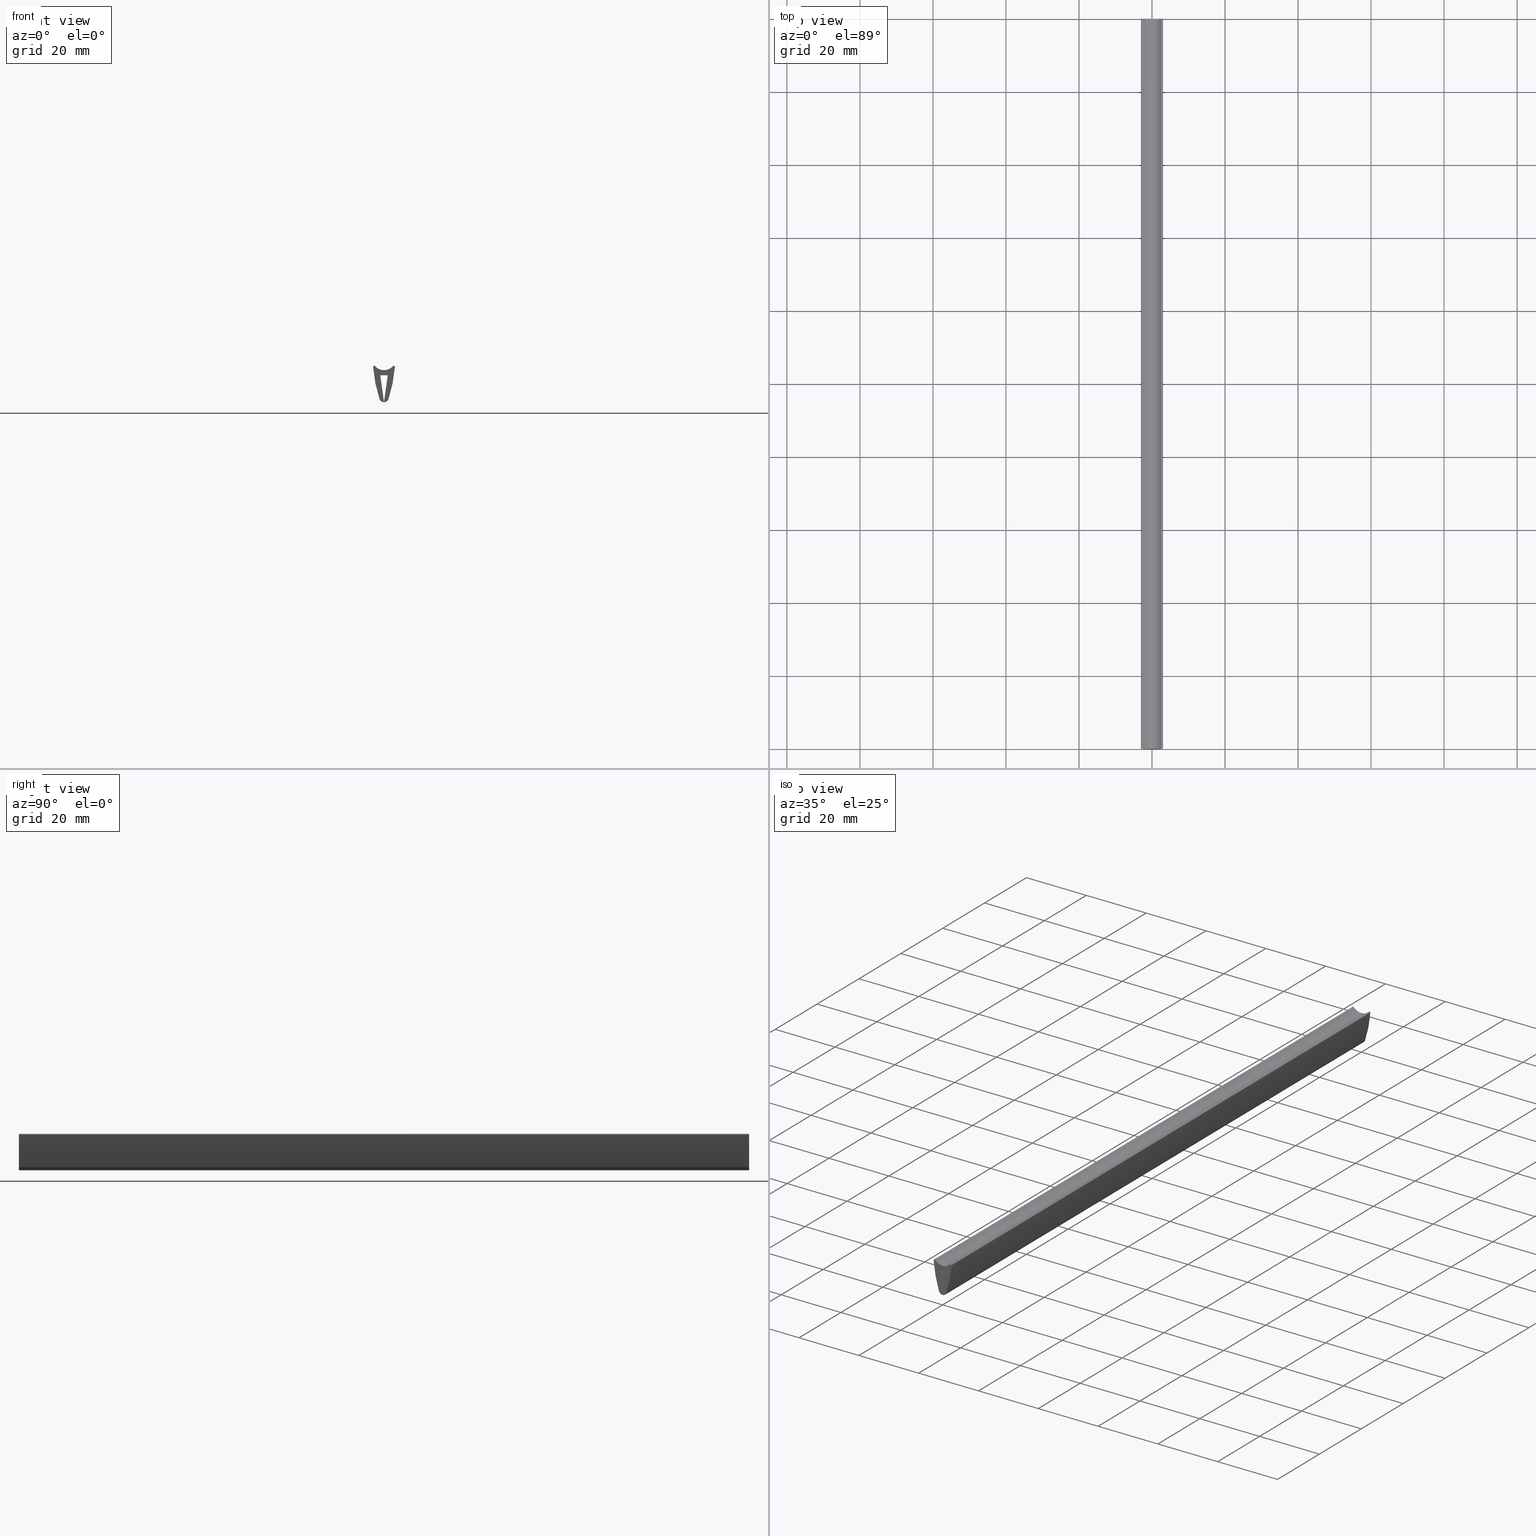
[diagram: canonical four-view strip — front | top / right | iso, engineering-drawing reading convention]
A machine part, canonical four-view strip (front | top / right | iso — engineering-drawing reading convention). The complete STEP part file that produces these views, byte-faithful:
ISO-10303-21;
HEADER;
/****************************************************************
 * Generated by software with PDE/Lib inside                    *
 * PDElib Version v5.1, created Sun 05/01/2005                  *
 * International Technegroup Inc. (www.iti-oh.com)              *
 ****************************************************************/
FILE_DESCRIPTION((''),'2;1');
FILE_NAME('','2011-05-26T16:06:13',(''),(''),'','CADfix','');
FILE_SCHEMA(('AUTOMOTIVE_DESIGN { 1 0 10303 214 1 1 1 1 }'));
ENDSEC;
DATA;
#5=CARTESIAN_POINT('',(-3.299698664219041,0.0,1.699103735473617));
#6=CARTESIAN_POINT('',(3.299698825136447,0.0,1.699103735473617));
#7=CARTESIAN_POINT('',(-3.299698664219041,0.0,-9.291263437741465));
#8=CARTESIAN_POINT('',(3.299698825136447,0.0,-9.291263437741465));
#9=B_SPLINE_SURFACE_WITH_KNOTS('',1,1,((#5,#7),(#6,#8)),.UNSPECIFIED.,.F.,.F.,.U.,(2,2),(2,2),(0.0,6.599397489355488),(0.0,10.990367173215080),.UNSPECIFIED.);
#10=CARTESIAN_POINT('',(-2.998893122436820,0.0,0.874253129103840));
#11=VERTEX_POINT('',#10);
#12=CARTESIAN_POINT('',(-1.237973647622556,0.0,-7.900937391492761));
#13=VERTEX_POINT('',#12);
#14=CARTESIAN_POINT('',(-2.998893122436820,0.0,0.874253129103840));
#15=CARTESIAN_POINT('',(-2.612403764091394,0.0,-3.612467279352695));
#16=CARTESIAN_POINT('',(-1.237973647622632,0.0,-7.900937391492790));
#24=(BOUNDED_CURVE()B_SPLINE_CURVE(2,(#14,#15,#16),.UNSPECIFIED.,.F.,.U.)CURVE()GEOMETRIC_REPRESENTATION_ITEM()QUASI_UNIFORM_CURVE()RATIONAL_B_SPLINE_CURVE((1.0,0.993722106049589,1.0))REPRESENTATION_ITEM(''));
#25=EDGE_CURVE('',#11,#13,#24,.T.);
#26=ORIENTED_EDGE('',*,*,#25,.T.);
#27=CARTESIAN_POINT('',(-0.187334978136214,0.0,-8.790605270910870));
#28=VERTEX_POINT('',#27);
#29=CARTESIAN_POINT('',(-1.237973647622559,0.0,-7.900937391492762));
#30=CARTESIAN_POINT('',(-0.990316610491872,0.0,-8.673672060989775));
#31=CARTESIAN_POINT('',(-0.187334978136215,0.0,-8.790605270910875));
#39=(BOUNDED_CURVE()B_SPLINE_CURVE(2,(#29,#30,#31),.UNSPECIFIED.,.F.,.U.)CURVE()GEOMETRIC_REPRESENTATION_ITEM()QUASI_UNIFORM_CURVE()RATIONAL_B_SPLINE_CURVE((1.0,0.848305782003037,1.0))REPRESENTATION_ITEM(''));
#40=EDGE_CURVE('',#13,#28,#39,.T.);
#41=ORIENTED_EDGE('',*,*,#40,.T.);
#42=CARTESIAN_POINT('',(-0.020026743271752,0.0,-8.606482669966738));
#43=VERTEX_POINT('',#42);
#44=CARTESIAN_POINT('',(-0.187334978136214,0.0,-8.790605270910870));
#45=CARTESIAN_POINT('',(-0.151001535892331,0.0,-8.796170380035825));
#46=CARTESIAN_POINT('',(-0.093893489949089,0.0,-8.782792772547014));
#47=CARTESIAN_POINT('',(-0.022510522975578,0.0,-8.713399255102539));
#48=CARTESIAN_POINT('',(-0.009384519282149,0.0,-8.648131069528631));
#49=CARTESIAN_POINT('',(-0.020026743271752,0.0,-8.606482669966738));
#50=B_SPLINE_CURVE_WITH_KNOTS('',3,(#44,#45,#46,#47,#48,#49),.UNSPECIFIED.,.F.,.U.,(4,1,1,4),(0.000002201997982,0.110086881460616,0.165083403019641,0.293525776803514),.UNSPECIFIED.);
#51=EDGE_CURVE('',#28,#43,#50,.T.);
#52=ORIENTED_EDGE('',*,*,#51,.T.);
#53=CARTESIAN_POINT('',(-0.999855904398664,0.0,-1.607590617739415));
#54=VERTEX_POINT('',#53);
#55=CARTESIAN_POINT('',(-0.999855904398664,0.0,-1.607590617739415));
#56=CARTESIAN_POINT('',(-0.865057145796371,0.0,-5.156752060998902));
#57=CARTESIAN_POINT('',(-0.020026743271770,0.0,-8.606482669966740));
#65=(BOUNDED_CURVE()B_SPLINE_CURVE(2,(#55,#56,#57),.UNSPECIFIED.,.F.,.U.)CURVE()GEOMETRIC_REPRESENTATION_ITEM()QUASI_UNIFORM_CURVE()RATIONAL_B_SPLINE_CURVE((1.0,0.994890563652172,1.0))REPRESENTATION_ITEM(''));
#66=EDGE_CURVE('',#54,#43,#65,.T.);
#67=ORIENTED_EDGE('',*,*,#66,.F.);
#68=CARTESIAN_POINT('',(-0.800000000001622,0.0,-1.399999999999916));
#69=VERTEX_POINT('',#68);
#70=CARTESIAN_POINT('',(-0.800000000001622,0.0,-1.399999999999916));
#71=CARTESIAN_POINT('',(-0.833508135735023,0.0,-1.399937144115973));
#72=CARTESIAN_POINT('',(-0.907288821847048,0.0,-1.418910241912869));
#73=CARTESIAN_POINT('',(-0.985036160612569,0.0,-1.499664612191858));
#74=CARTESIAN_POINT('',(-1.001185641919484,0.0,-1.574112395093613));
#75=CARTESIAN_POINT('',(-0.999855904398664,0.0,-1.607590617739415));
#76=B_SPLINE_CURVE_WITH_KNOTS('',3,(#70,#71,#72,#73,#74,#75),.UNSPECIFIED.,.F.,.U.,(4,1,1,4),(0.000000970218577,0.100599527060045,0.221288103588565,0.321886660430032),.UNSPECIFIED.);
#77=EDGE_CURVE('',#69,#54,#76,.T.);
#78=ORIENTED_EDGE('',*,*,#77,.F.);
#79=CARTESIAN_POINT('',(0.799999999998310,0.0,-1.400000000000000));
#80=VERTEX_POINT('',#79);
#81=CARTESIAN_POINT('',(-0.800000000001622,0.0,-1.399999999999916));
#82=CARTESIAN_POINT('',(0.799999999998310,0.0,-1.400000000000000));
#83=QUASI_UNIFORM_CURVE('',1,(#81,#82),.UNSPECIFIED.,.F.,.U.);
#84=EDGE_CURVE('',#69,#80,#83,.T.);
#85=ORIENTED_EDGE('',*,*,#84,.T.);
#86=CARTESIAN_POINT('',(0.999855904395450,0.0,-1.607590617739615));
#87=VERTEX_POINT('',#86);
#88=CARTESIAN_POINT('',(0.999855904395450,0.0,-1.607590617739615));
#89=CARTESIAN_POINT('',(1.001907532285566,0.0,-1.560659114451257));
#90=CARTESIAN_POINT('',(0.966149434561479,0.0,-1.452358081884174));
#91=CARTESIAN_POINT('',(0.860682385443298,0.0,-1.399185288205427));
#92=CARTESIAN_POINT('',(0.799999999998310,0.0,-1.400000000000000));
#93=B_SPLINE_CURVE_WITH_KNOTS('',3,(#88,#89,#90,#91,#92),.UNSPECIFIED.,.F.,.U.,(4,1,4),(0.000000970218598,0.140839940640073,0.321886660430248),.UNSPECIFIED.);
#94=EDGE_CURVE('',#87,#80,#93,.T.);
#95=ORIENTED_EDGE('',*,*,#94,.F.);
#96=CARTESIAN_POINT('',(0.020026743268538,0.0,-8.606482669966779));
#97=VERTEX_POINT('',#96);
#98=CARTESIAN_POINT('',(0.020026743268522,0.0,-8.606482669966770));
#99=CARTESIAN_POINT('',(0.865057145793102,0.0,-5.156752060999003));
#100=CARTESIAN_POINT('',(0.999855904395427,0.0,-1.607590617739615));
#108=(BOUNDED_CURVE()B_SPLINE_CURVE(2,(#98,#99,#100),.UNSPECIFIED.,.F.,.U.)CURVE()GEOMETRIC_REPRESENTATION_ITEM()QUASI_UNIFORM_CURVE()RATIONAL_B_SPLINE_CURVE((1.0,0.994890563652173,1.0))REPRESENTATION_ITEM(''));
#109=EDGE_CURVE('',#97,#87,#108,.T.);
#110=ORIENTED_EDGE('',*,*,#109,.F.);
#111=CARTESIAN_POINT('',(0.187334978132994,0.0,-8.790605270910961));
#112=VERTEX_POINT('',#111);
#113=CARTESIAN_POINT('',(0.020026743268538,0.0,-8.606482669966779));
#114=CARTESIAN_POINT('',(0.009324921266339,0.0,-8.648118682174051));
#115=CARTESIAN_POINT('',(0.023876558841976,0.0,-8.719980609674424));
#116=CARTESIAN_POINT('',(0.100289526268851,0.0,-8.785703170339279));
#117=CARTESIAN_POINT('',(0.157096192620880,0.0,-8.795120373757449));
#118=CARTESIAN_POINT('',(0.187334978132994,0.0,-8.790605270910961));
#119=B_SPLINE_CURVE_WITH_KNOTS('',3,(#113,#114,#115,#116,#117,#118),.UNSPECIFIED.,.F.,.U.,(4,1,1,4),(0.000002201997912,0.128444575781820,0.201795464997741,0.293525776803511),.UNSPECIFIED.);
#120=EDGE_CURVE('',#97,#112,#119,.T.);
#121=ORIENTED_EDGE('',*,*,#120,.T.);
#122=CARTESIAN_POINT('',(1.237973647619502,0.0,-7.900937391492809));
#123=VERTEX_POINT('',#122);
#124=CARTESIAN_POINT('',(0.187334978132991,0.0,-8.790605270910945));
#125=CARTESIAN_POINT('',(0.990316610488731,0.0,-8.673672060989876));
#126=CARTESIAN_POINT('',(1.237973647619503,0.0,-7.900937391492811));
#134=(BOUNDED_CURVE()B_SPLINE_CURVE(2,(#124,#125,#126),.UNSPECIFIED.,.F.,.U.)CURVE()GEOMETRIC_REPRESENTATION_ITEM()QUASI_UNIFORM_CURVE()RATIONAL_B_SPLINE_CURVE((1.0,0.848305782003044,1.0))REPRESENTATION_ITEM(''));
#135=EDGE_CURVE('',#112,#123,#134,.T.);
#136=ORIENTED_EDGE('',*,*,#135,.T.);
#137=CARTESIAN_POINT('',(2.998893122433645,0.0,0.874253129104146));
#138=VERTEX_POINT('',#137);
#139=CARTESIAN_POINT('',(1.237973647619502,0.0,-7.900937391492809));
#140=CARTESIAN_POINT('',(2.612403764088285,0.0,-3.612467279352602));
#141=CARTESIAN_POINT('',(2.998893122433656,0.0,0.874253129104148));
#149=(BOUNDED_CURVE()B_SPLINE_CURVE(2,(#139,#140,#141),.UNSPECIFIED.,.F.,.U.)CURVE()GEOMETRIC_REPRESENTATION_ITEM()QUASI_UNIFORM_CURVE()RATIONAL_B_SPLINE_CURVE((1.0,0.993722106049587,1.0))REPRESENTATION_ITEM(''));
#150=EDGE_CURVE('',#123,#138,#149,.T.);
#151=ORIENTED_EDGE('',*,*,#150,.T.);
#152=CARTESIAN_POINT('',(2.477319587627130,0.0,1.101030927835138));
#153=VERTEX_POINT('',#152);
#154=CARTESIAN_POINT('',(2.998893122433645,0.0,0.874253129104146));
#155=CARTESIAN_POINT('',(3.004521620364686,0.0,0.936419485403966));
#156=CARTESIAN_POINT('',(2.983996488947026,0.0,1.023849983374227));
#157=CARTESIAN_POINT('',(2.902812359001548,0.0,1.129707971594235));
#158=CARTESIAN_POINT('',(2.794744162492375,0.0,1.198492493214862));
#159=CARTESIAN_POINT('',(2.625239778232360,0.0,1.208566657177978));
#160=CARTESIAN_POINT('',(2.518941001537854,0.0,1.147510813045979));
#161=CARTESIAN_POINT('',(2.477319587627130,0.0,1.101030927835138));
#162=B_SPLINE_CURVE_WITH_KNOTS('',3,(#154,#155,#156,#157,#158,#159,#160,#161),.UNSPECIFIED.,.F.,.U.,(4,1,1,1,1,4),(0.000001289996857,0.187036168460242,0.257210943769040,0.397427021308781,0.561105925386999,0.748140803850377),.UNSPECIFIED.);
#163=EDGE_CURVE('',#138,#153,#162,.T.);
#164=ORIENTED_EDGE('',*,*,#163,.T.);
#165=CARTESIAN_POINT('',(-2.477319587630510,0.0,1.101030927835092));
#166=VERTEX_POINT('',#165);
#167=CARTESIAN_POINT('',(-2.477319587630510,0.0,1.101030927835092));
#168=CARTESIAN_POINT('',(-2.243605512997933,0.0,0.841884956283377));
#169=CARTESIAN_POINT('',(-1.693889548455284,0.0,0.397998059425644));
#170=CARTESIAN_POINT('',(-0.786785272524818,0.0,0.050367243145911));
#171=CARTESIAN_POINT('',(0.117202742366407,0.0,-0.032485259452997));
#172=CARTESIAN_POINT('',(0.899341585064564,0.0,0.091211854875534));
#173=CARTESIAN_POINT('',(1.737008639823064,0.0,0.437582120115600));
#174=CARTESIAN_POINT('',(2.224163110301102,0.0,0.820229923310281));
#175=CARTESIAN_POINT('',(2.477319587627130,0.0,1.101030927835138));
#176=B_SPLINE_CURVE_WITH_KNOTS('',3,(#167,#168,#169,#170,#171,#172,#173,#174,#175),.UNSPECIFIED.,.F.,.U.,(4,1,1,1,1,1,4),(0.000000388793252,1.046878569888817,2.093839955818141,2.878922345936131,3.751381498403354,4.449332256195157,5.583453707900905),.UNSPECIFIED.);
#177=EDGE_CURVE('',#166,#153,#176,.T.);
#178=ORIENTED_EDGE('',*,*,#177,.F.);
#179=CARTESIAN_POINT('',(-2.477319587630510,0.0,1.101030927835092));
#180=CARTESIAN_POINT('',(-2.524075186103634,0.0,1.153503983100710));
#181=CARTESIAN_POINT('',(-2.626771271548874,0.0,1.206794905432737));
#182=CARTESIAN_POINT('',(-2.793333063017089,0.0,1.196932997980106));
#183=CARTESIAN_POINT('',(-2.905045255941546,0.0,1.131902157287119));
#184=CARTESIAN_POINT('',(-2.986968135568884,0.0,1.015895106344414));
#185=CARTESIAN_POINT('',(-3.003724939097112,0.0,0.928609963083063));
#186=CARTESIAN_POINT('',(-2.998893122436820,0.0,0.874253129103840));
#187=B_SPLINE_CURVE_WITH_KNOTS('',3,(#179,#180,#181,#182,#183,#184,#185,#186),.UNSPECIFIED.,.F.,.U.,(4,1,1,1,1,4),(0.000001289997117,0.210420678298412,0.327353980954451,0.490931150078353,0.584490435225086,0.748140803850468),.UNSPECIFIED.);
#188=EDGE_CURVE('',#166,#11,#187,.T.);
#189=ORIENTED_EDGE('',*,*,#188,.T.);
#190=EDGE_LOOP('',(#26,#41,#52,#67,#78,#85,#95,#110,#121,#136,#151,#164,#178,#189));
#191=FACE_OUTER_BOUND('',#190,.T.);
#192=ADVANCED_FACE('',(#191),#9,.F.);
#193=CARTESIAN_POINT('',(-3.299698664219038,200.0,1.699103735473617));
#194=CARTESIAN_POINT('',(3.299698825136383,200.0,1.699103735473617));
#195=CARTESIAN_POINT('',(-3.299698664219038,200.0,-9.291263437741465));
#196=CARTESIAN_POINT('',(3.299698825136383,200.0,-9.291263437741465));
#197=B_SPLINE_SURFACE_WITH_KNOTS('',1,1,((#193,#195),(#194,#196)),.UNSPECIFIED.,.F.,.F.,.U.,(2,2),(2,2),(0.0,6.599397489355421),(0.0,10.990367173215080),.UNSPECIFIED.);
#198=CARTESIAN_POINT('',(-2.998893122436820,200.0,0.874253129103840));
#199=VERTEX_POINT('',#198);
#200=CARTESIAN_POINT('',(-1.237973647622556,200.0,-7.900937391492761));
#201=VERTEX_POINT('',#200);
#202=CARTESIAN_POINT('',(-2.998893122436889,200.0,0.874253129103833));
#203=CARTESIAN_POINT('',(-2.612403764091394,200.0,-3.612467279352695));
#204=CARTESIAN_POINT('',(-1.237973647622632,200.0,-7.900937391492790));
#212=(BOUNDED_CURVE()B_SPLINE_CURVE(2,(#202,#203,#204),.UNSPECIFIED.,.F.,.U.)CURVE()GEOMETRIC_REPRESENTATION_ITEM()QUASI_UNIFORM_CURVE()RATIONAL_B_SPLINE_CURVE((1.0,0.993722106049589,1.0))REPRESENTATION_ITEM(''));
#213=EDGE_CURVE('',#199,#201,#212,.T.);
#214=ORIENTED_EDGE('',*,*,#213,.F.);
#215=CARTESIAN_POINT('',(-2.477319587630510,200.0,1.101030927835092));
#216=VERTEX_POINT('',#215);
#217=CARTESIAN_POINT('',(-2.477319587630510,200.0,1.101030927835092));
#218=CARTESIAN_POINT('',(-2.518928375286595,200.000000000000110,1.147510487906143));
#219=CARTESIAN_POINT('',(-2.632361908604052,199.999999999999800,1.212657673200214));
#220=CARTESIAN_POINT('',(-2.803127932979718,200.000000000000200,1.196023092309493));
#221=CARTESIAN_POINT('',(-2.914092934165139,199.999999999999890,1.118894478143642));
#222=CARTESIAN_POINT('',(-2.986964586527260,200.000000000000310,1.015898076216550));
#223=CARTESIAN_POINT('',(-3.003730743328797,199.999999999999600,0.928617880250198));
#224=CARTESIAN_POINT('',(-2.998893122436820,200.0,0.874253129103840));
#225=B_SPLINE_CURVE_WITH_KNOTS('',3,(#217,#218,#219,#220,#221,#222,#223,#224),.UNSPECIFIED.,.F.,.U.,(4,1,1,1,1,4),(0.000001289997121,0.187036168460469,0.374071046923803,0.490931150078365,0.584490435225099,0.748140803850483),.UNSPECIFIED.);
#226=EDGE_CURVE('',#216,#199,#225,.T.);
#227=ORIENTED_EDGE('',*,*,#226,.F.);
#228=CARTESIAN_POINT('',(2.477319587627130,200.0,1.101030927835138));
#229=VERTEX_POINT('',#228);
#230=CARTESIAN_POINT('',(-2.477319587630510,200.0,1.101030927835092));
#231=CARTESIAN_POINT('',(-2.185301951687908,200.000000000000200,0.776901298571105));
#232=CARTESIAN_POINT('',(-1.614482824410439,199.999999999999690,0.352477076912504));
#233=CARTESIAN_POINT('',(-0.699253217234550,200.000000000000400,0.042460696455248));
#234=CARTESIAN_POINT('',(0.088041053746234,199.999999999999090,-0.029793271423371));
#235=CARTESIAN_POINT('',(0.754510882835182,200.000000000001190,0.066744718531499));
#236=CARTESIAN_POINT('',(1.610275172972183,199.999999999998890,0.356528981793505));
#237=CARTESIAN_POINT('',(2.146503356365620,200.000000000000510,0.733434808261490));
#238=CARTESIAN_POINT('',(2.477319587627130,200.0,1.101030927835138));
#239=B_SPLINE_CURVE_WITH_KNOTS('',3,(#230,#231,#232,#233,#234,#235,#236,#237,#238),.UNSPECIFIED.,.F.,.U.,(4,1,1,1,1,1,4),(0.000000388793252,1.308621055642397,2.093839955818141,2.878922345936131,3.664121031663046,4.100346029470019,5.583453707900905),.UNSPECIFIED.);
#240=EDGE_CURVE('',#216,#229,#239,.T.);
#241=ORIENTED_EDGE('',*,*,#240,.T.);
#242=CARTESIAN_POINT('',(2.998893122433645,200.0,0.874253129104146));
#243=VERTEX_POINT('',#242);
#244=CARTESIAN_POINT('',(2.998893122433645,200.0,0.874253129104146));
#245=CARTESIAN_POINT('',(3.003708872047386,199.999999999999800,0.928608069594509));
#246=CARTESIAN_POINT('',(2.986967915593394,200.000000000000110,1.015880153105834));
#247=CARTESIAN_POINT('',(2.900568399924450,200.000000000000110,1.138423786947227));
#248=CARTESIAN_POINT('',(2.763407125627639,199.999999999999690,1.211251917976106));
#249=CARTESIAN_POINT('',(2.594393054960138,200.000000000000710,1.194776871103950));
#250=CARTESIAN_POINT('',(2.508592734814870,199.999999999999400,1.135752485640955));
#251=CARTESIAN_POINT('',(2.477319587627130,200.0,1.101030927835138));
#252=B_SPLINE_CURVE_WITH_KNOTS('',3,(#244,#245,#246,#247,#248,#249,#250,#251),.UNSPECIFIED.,.F.,.U.,(4,1,1,1,1,4),(0.000001289996996,0.163651658622378,0.257210943769111,0.444158639192061,0.607884701808096,0.748140803850346),.UNSPECIFIED.);
#253=EDGE_CURVE('',#243,#229,#252,.T.);
#254=ORIENTED_EDGE('',*,*,#253,.F.);
#255=CARTESIAN_POINT('',(1.237973647619502,200.0,-7.900937391492809));
#256=VERTEX_POINT('',#255);
#257=CARTESIAN_POINT('',(1.237973647619441,200.0,-7.900937391492803));
#258=CARTESIAN_POINT('',(2.612403764088285,200.0,-3.612467279352602));
#259=CARTESIAN_POINT('',(2.998893122433656,200.0,0.874253129104148));
#267=(BOUNDED_CURVE()B_SPLINE_CURVE(2,(#257,#258,#259),.UNSPECIFIED.,.F.,.U.)CURVE()GEOMETRIC_REPRESENTATION_ITEM()QUASI_UNIFORM_CURVE()RATIONAL_B_SPLINE_CURVE((1.0,0.993722106049587,1.0))REPRESENTATION_ITEM(''));
#268=EDGE_CURVE('',#256,#243,#267,.T.);
#269=ORIENTED_EDGE('',*,*,#268,.F.);
#270=CARTESIAN_POINT('',(0.187334978132994,200.0,-8.790605270910961));
#271=VERTEX_POINT('',#270);
#272=CARTESIAN_POINT('',(0.187334978132991,200.0,-8.790605270910945));
#273=CARTESIAN_POINT('',(0.990316610488731,199.999999999999970,-8.673672060989876));
#274=CARTESIAN_POINT('',(1.237973647619503,200.0,-7.900937391492811));
#282=(BOUNDED_CURVE()B_SPLINE_CURVE(2,(#272,#273,#274),.UNSPECIFIED.,.F.,.U.)CURVE()GEOMETRIC_REPRESENTATION_ITEM()QUASI_UNIFORM_CURVE()RATIONAL_B_SPLINE_CURVE((1.0,0.848305782003044,1.0))REPRESENTATION_ITEM(''));
#283=EDGE_CURVE('',#271,#256,#282,.T.);
#284=ORIENTED_EDGE('',*,*,#283,.F.);
#285=CARTESIAN_POINT('',(0.020026743268538,200.0,-8.606482669966779));
#286=VERTEX_POINT('',#285);
#287=CARTESIAN_POINT('',(0.020026743268538,200.0,-8.606482669966779));
#288=CARTESIAN_POINT('',(0.009324921266339,200.000000000000110,-8.648118682174051));
#289=CARTESIAN_POINT('',(0.023876558841976,200.0,-8.719980609674424));
#290=CARTESIAN_POINT('',(0.100289526268851,199.999999999999800,-8.785703170339279));
#291=CARTESIAN_POINT('',(0.157096192620880,200.000000000000200,-8.795120373757449));
#292=CARTESIAN_POINT('',(0.187334978132994,200.0,-8.790605270910961));
#293=B_SPLINE_CURVE_WITH_KNOTS('',3,(#287,#288,#289,#290,#291,#292),.UNSPECIFIED.,.F.,.U.,(4,1,1,4),(0.000002201997912,0.128444575781820,0.201795464997741,0.293525776803511),.UNSPECIFIED.);
#294=EDGE_CURVE('',#286,#271,#293,.T.);
#295=ORIENTED_EDGE('',*,*,#294,.F.);
#296=CARTESIAN_POINT('',(0.999855904395450,200.0,-1.607590617739615));
#297=VERTEX_POINT('',#296);
#298=CARTESIAN_POINT('',(0.020026743268522,200.0,-8.606482669966770));
#299=CARTESIAN_POINT('',(0.865057145793102,199.999999999999970,-5.156752060999003));
#300=CARTESIAN_POINT('',(0.999855904395427,200.0,-1.607590617739615));
#308=(BOUNDED_CURVE()B_SPLINE_CURVE(2,(#298,#299,#300),.UNSPECIFIED.,.F.,.U.)CURVE()GEOMETRIC_REPRESENTATION_ITEM()QUASI_UNIFORM_CURVE()RATIONAL_B_SPLINE_CURVE((1.0,0.994890563652173,1.0))REPRESENTATION_ITEM(''));
#309=EDGE_CURVE('',#286,#297,#308,.T.);
#310=ORIENTED_EDGE('',*,*,#309,.T.);
#311=CARTESIAN_POINT('',(0.799999999998310,200.0,-1.400000000000000));
#312=VERTEX_POINT('',#311);
#313=CARTESIAN_POINT('',(0.999855904395450,200.0,-1.607590617739615));
#314=CARTESIAN_POINT('',(1.001906759826174,200.000000000000310,-1.560658088767157));
#315=CARTESIAN_POINT('',(0.966152136353711,199.999999999999490,-1.452361936824544));
#316=CARTESIAN_POINT('',(0.860681140411592,200.000000000000400,-1.399182114837902));
#317=CARTESIAN_POINT('',(0.799999999998310,200.0,-1.400000000000000));
#318=B_SPLINE_CURVE_WITH_KNOTS('',3,(#313,#314,#315,#316,#317),.UNSPECIFIED.,.F.,.U.,(4,1,4),(0.000000970218598,0.140839940640073,0.321886660430248),.UNSPECIFIED.);
#319=EDGE_CURVE('',#297,#312,#318,.T.);
#320=ORIENTED_EDGE('',*,*,#319,.T.);
#321=CARTESIAN_POINT('',(-0.800000000001622,200.0,-1.399999999999916));
#322=VERTEX_POINT('',#321);
#323=CARTESIAN_POINT('',(-0.800000000001622,200.0,-1.399999999999916));
#324=CARTESIAN_POINT('',(0.799999999998310,200.0,-1.400000000000000));
#325=QUASI_UNIFORM_CURVE('',1,(#323,#324),.UNSPECIFIED.,.F.,.U.);
#326=EDGE_CURVE('',#322,#312,#325,.T.);
#327=ORIENTED_EDGE('',*,*,#326,.F.);
#328=CARTESIAN_POINT('',(-0.999855904398664,200.0,-1.607590617739415));
#329=VERTEX_POINT('',#328);
#330=CARTESIAN_POINT('',(-0.800000000001622,200.0,-1.399999999999916));
#331=CARTESIAN_POINT('',(-0.846978547335312,199.999999999999890,-1.399734582208129));
#332=CARTESIAN_POINT('',(-0.953850958446323,200.000000000000510,-1.439567365723861));
#333=CARTESIAN_POINT('',(-1.002960169008801,199.999999999999490,-1.546983550369157));
#334=CARTESIAN_POINT('',(-0.999855904398664,200.0,-1.607590617739415));
#335=B_SPLINE_CURVE_WITH_KNOTS('',3,(#330,#331,#332,#333,#334),.UNSPECIFIED.,.F.,.U.,(4,1,4),(0.000000970218584,0.140839940639895,0.321886660430023),.UNSPECIFIED.);
#336=EDGE_CURVE('',#322,#329,#335,.T.);
#337=ORIENTED_EDGE('',*,*,#336,.T.);
#338=CARTESIAN_POINT('',(-0.020026743271752,200.0,-8.606482669966738));
#339=VERTEX_POINT('',#338);
#340=CARTESIAN_POINT('',(-0.999855904398682,200.0,-1.607590617739419));
#341=CARTESIAN_POINT('',(-0.865057145796371,200.000000000000030,-5.156752060998902));
#342=CARTESIAN_POINT('',(-0.020026743271770,200.0,-8.606482669966740));
#350=(BOUNDED_CURVE()B_SPLINE_CURVE(2,(#340,#341,#342),.UNSPECIFIED.,.F.,.U.)CURVE()GEOMETRIC_REPRESENTATION_ITEM()QUASI_UNIFORM_CURVE()RATIONAL_B_SPLINE_CURVE((1.0,0.994890563652172,1.0))REPRESENTATION_ITEM(''));
#351=EDGE_CURVE('',#329,#339,#350,.T.);
#352=ORIENTED_EDGE('',*,*,#351,.T.);
#353=CARTESIAN_POINT('',(-0.187334978136214,200.0,-8.790605270910870));
#354=VERTEX_POINT('',#353);
#355=CARTESIAN_POINT('',(-0.187334978136214,200.0,-8.790605270910870));
#356=CARTESIAN_POINT('',(-0.144865236019064,200.000000000000110,-8.797285429229513));
#357=CARTESIAN_POINT('',(-0.074723521547023,200.000000000000110,-8.775933399841916));
#358=CARTESIAN_POINT('',(-0.016594971482905,200.000000000000110,-8.693598355134233));
#359=CARTESIAN_POINT('',(-0.012645548553951,199.999999999999800,-8.636152773519257));
#360=CARTESIAN_POINT('',(-0.020026743271752,200.0,-8.606482669966738));
#361=B_SPLINE_CURVE_WITH_KNOTS('',3,(#355,#356,#357,#358,#359,#360),.UNSPECIFIED.,.F.,.U.,(4,1,1,4),(0.000002201997927,0.128444575781818,0.201795464997744,0.293525776803532),.UNSPECIFIED.);
#362=EDGE_CURVE('',#354,#339,#361,.T.);
#363=ORIENTED_EDGE('',*,*,#362,.F.);
#364=CARTESIAN_POINT('',(-1.237973647622559,200.0,-7.900937391492762));
#365=CARTESIAN_POINT('',(-0.990316610491872,199.999999999999970,-8.673672060989775));
#366=CARTESIAN_POINT('',(-0.187334978136215,200.0,-8.790605270910875));
#374=(BOUNDED_CURVE()B_SPLINE_CURVE(2,(#364,#365,#366),.UNSPECIFIED.,.F.,.U.)CURVE()GEOMETRIC_REPRESENTATION_ITEM()QUASI_UNIFORM_CURVE()RATIONAL_B_SPLINE_CURVE((1.0,0.848305782003037,1.0))REPRESENTATION_ITEM(''));
#375=EDGE_CURVE('',#201,#354,#374,.T.);
#376=ORIENTED_EDGE('',*,*,#375,.F.);
#377=EDGE_LOOP('',(#214,#227,#241,#254,#269,#284,#295,#310,#320,#327,#337,#352,#363,#376));
#378=FACE_OUTER_BOUND('',#377,.T.);
#379=ADVANCED_FACE('',(#378),#197,.T.);
#380=CARTESIAN_POINT('',(-2.997485579678489,205.0,0.861240099531557));
#381=CARTESIAN_POINT('',(-2.997485579678489,-5.125000000000000,0.861240099531557));
#382=CARTESIAN_POINT('',(-3.026693259658027,205.0,1.085411562944272));
#383=CARTESIAN_POINT('',(-3.026693259658027,-5.125000000000000,1.085411562944272));
#384=CARTESIAN_POINT('',(-2.819256546236055,205.0,1.175277816360535));
#385=CARTESIAN_POINT('',(-2.819256546236055,-5.125000000000000,1.175277816360535));
#386=CARTESIAN_POINT('',(-2.611819832814082,205.0,1.265144069776798));
#387=CARTESIAN_POINT('',(-2.611819832814082,-5.125000000000000,1.265144069776798));
#388=CARTESIAN_POINT('',(-2.468257538460541,205.0,1.090513599301761));
#389=CARTESIAN_POINT('',(-2.468257538460541,-5.125000000000000,1.090513599301761));
#397=(BOUNDED_SURFACE()B_SPLINE_SURFACE(1,2,((#380,#382,#384,#386,#388),(#381,#383,#385,#387,#389)),.UNSPECIFIED.,.F.,.F.,.U.)B_SPLINE_SURFACE_WITH_KNOTS((2,2),(3,2,3),(0.0,210.125000000000000),(0.0,0.401514383402553,0.803028766805106),.UNSPECIFIED.)GEOMETRIC_REPRESENTATION_ITEM()RATIONAL_B_SPLINE_SURFACE(((1.0,0.798635510047293,1.0,0.798635510047293,1.0),(1.0,0.798635510047293,1.0,0.798635510047293,1.0)))REPRESENTATION_ITEM('')SURFACE());
#398=ORIENTED_EDGE('',*,*,#188,.F.);
#399=CARTESIAN_POINT('',(-2.477319587630510,200.0,1.101030927835092));
#400=CARTESIAN_POINT('',(-2.477319587630510,0.0,1.101030927835092));
#401=QUASI_UNIFORM_CURVE('',1,(#399,#400),.UNSPECIFIED.,.F.,.U.);
#402=EDGE_CURVE('',#216,#166,#401,.T.);
#403=ORIENTED_EDGE('',*,*,#402,.F.);
#404=ORIENTED_EDGE('',*,*,#226,.T.);
#405=CARTESIAN_POINT('',(-2.998893122436820,200.0,0.874253129103840));
#406=CARTESIAN_POINT('',(-2.998893122436820,0.0,0.874253129103840));
#407=QUASI_UNIFORM_CURVE('',1,(#405,#406),.UNSPECIFIED.,.F.,.U.);
#408=EDGE_CURVE('',#199,#11,#407,.T.);
#409=ORIENTED_EDGE('',*,*,#408,.T.);
#410=EDGE_LOOP('',(#398,#403,#404,#409));
#411=FACE_OUTER_BOUND('',#410,.T.);
#412=ADVANCED_FACE('',(#411),#397,.T.);
#413=CARTESIAN_POINT('',(2.535014607371179,205.0,1.166645976716487));
#414=CARTESIAN_POINT('',(2.535014607371179,-5.125000000000000,1.166645976716487));
#415=CARTESIAN_POINT('',(-0.052108473874446,205.0,-1.854466788898873));
#416=CARTESIAN_POINT('',(-0.052108473874446,-5.125000000000000,-1.854466788898873));
#417=CARTESIAN_POINT('',(-2.578074539718253,205.0,1.217962805784057));
#418=CARTESIAN_POINT('',(-2.578074539718253,-5.125000000000000,1.217962805784057));
#426=(BOUNDED_SURFACE()B_SPLINE_SURFACE(1,2,((#413,#415,#417),(#414,#416,#418)),.UNSPECIFIED.,.F.,.F.,.U.)B_SPLINE_SURFACE_WITH_KNOTS((2,2),(3,3),(0.0,210.125000000000110),(0.0,6.225207236369077),.UNSPECIFIED.)GEOMETRIC_REPRESENTATION_ITEM()RATIONAL_B_SPLINE_SURFACE(((1.0,0.642787609686539,1.0),(1.0,0.642787609686539,1.0)))REPRESENTATION_ITEM('')SURFACE());
#427=ORIENTED_EDGE('',*,*,#177,.T.);
#428=CARTESIAN_POINT('',(2.477319587627130,200.0,1.101030927835138));
#429=CARTESIAN_POINT('',(2.477319587627130,0.0,1.101030927835138));
#430=QUASI_UNIFORM_CURVE('',1,(#428,#429),.UNSPECIFIED.,.F.,.U.);
#431=EDGE_CURVE('',#229,#153,#430,.T.);
#432=ORIENTED_EDGE('',*,*,#431,.F.);
#433=ORIENTED_EDGE('',*,*,#240,.F.);
#434=ORIENTED_EDGE('',*,*,#402,.T.);
#435=EDGE_LOOP('',(#427,#432,#433,#434));
#436=FACE_OUTER_BOUND('',#435,.T.);
#437=ADVANCED_FACE('',(#436),#426,.F.);
#438=CARTESIAN_POINT('',(2.471617754723270,205.0,1.094529046785269));
#439=CARTESIAN_POINT('',(2.471617754723270,-5.125000000000000,1.094529046785269));
#440=CARTESIAN_POINT('',(2.619541079217315,204.999999999999970,1.268194941595241));
#441=CARTESIAN_POINT('',(2.619541079217315,-5.125000000000000,1.268194941595241));
#442=CARTESIAN_POINT('',(2.826421613161815,205.0,1.172061713082112));
#443=CARTESIAN_POINT('',(2.826421613161815,-5.125000000000000,1.172061713082112));
#444=CARTESIAN_POINT('',(3.033302147106314,204.999999999999970,1.075928484568983));
#445=CARTESIAN_POINT('',(3.033302147106314,-5.125000000000000,1.075928484568983));
#446=CARTESIAN_POINT('',(2.995951658479331,205.0,0.850881614008995));
#447=CARTESIAN_POINT('',(2.995951658479331,-5.125000000000000,0.850881614008995));
#455=(BOUNDED_SURFACE()B_SPLINE_SURFACE(1,2,((#438,#440,#442,#444,#446),(#439,#441,#443,#445,#447)),.UNSPECIFIED.,.F.,.F.,.U.)B_SPLINE_SURFACE_WITH_KNOTS((2,2),(3,2,3),(0.0,210.125000000000000),(0.0,0.404427603436175,0.808855206872349),.UNSPECIFIED.)GEOMETRIC_REPRESENTATION_ITEM()RATIONAL_B_SPLINE_SURFACE(((1.0,0.796002002534622,1.0,0.796002002534622,1.0),(1.0,0.796002002534622,1.0,0.796002002534622,1.0)))REPRESENTATION_ITEM('')SURFACE());
#456=ORIENTED_EDGE('',*,*,#163,.F.);
#457=CARTESIAN_POINT('',(2.998893122433645,200.0,0.874253129104146));
#458=CARTESIAN_POINT('',(2.998893122433645,0.0,0.874253129104146));
#459=QUASI_UNIFORM_CURVE('',1,(#457,#458),.UNSPECIFIED.,.F.,.U.);
#460=EDGE_CURVE('',#243,#138,#459,.T.);
#461=ORIENTED_EDGE('',*,*,#460,.F.);
#462=ORIENTED_EDGE('',*,*,#253,.T.);
#463=ORIENTED_EDGE('',*,*,#431,.T.);
#464=EDGE_LOOP('',(#456,#461,#462,#463));
#465=FACE_OUTER_BOUND('',#464,.T.);
#466=ADVANCED_FACE('',(#465),#455,.T.);
#467=CARTESIAN_POINT('',(3.034711564470118,204.999999999999970,1.319071660765626));
#468=CARTESIAN_POINT('',(3.034711564470118,-5.125000000000000,1.319071660765626));
#469=CARTESIAN_POINT('',(2.664448618864371,205.0,-3.623583277913389));
#470=CARTESIAN_POINT('',(2.664448618864371,-5.125000000000002,-3.623583277913389));
#471=CARTESIAN_POINT('',(1.098992878769032,204.999999999999970,-8.326378278499664));
#472=CARTESIAN_POINT('',(1.098992878769032,-5.125000000000000,-8.326378278499664));
#480=(BOUNDED_SURFACE()B_SPLINE_SURFACE(1,2,((#467,#469,#471),(#468,#470,#472)),.UNSPECIFIED.,.F.,.F.,.U.)B_SPLINE_SURFACE_WITH_KNOTS((2,2),(3,3),(0.0,210.125000000000000),(0.0,9.875239749481306),.UNSPECIFIED.)GEOMETRIC_REPRESENTATION_ITEM()RATIONAL_B_SPLINE_SURFACE(((0.998609512048968,0.989512599437258,0.995553457017018),(0.998609512048968,0.989512599437258,0.995553457017018)))REPRESENTATION_ITEM('')SURFACE());
#481=ORIENTED_EDGE('',*,*,#150,.F.);
#482=CARTESIAN_POINT('',(1.237973647619502,200.0,-7.900937391492809));
#483=CARTESIAN_POINT('',(1.237973647619502,0.0,-7.900937391492809));
#484=QUASI_UNIFORM_CURVE('',1,(#482,#483),.UNSPECIFIED.,.F.,.U.);
#485=EDGE_CURVE('',#256,#123,#484,.T.);
#486=ORIENTED_EDGE('',*,*,#485,.F.);
#487=ORIENTED_EDGE('',*,*,#268,.T.);
#488=ORIENTED_EDGE('',*,*,#460,.T.);
#489=EDGE_LOOP('',(#481,#486,#487,#488));
#490=FACE_OUTER_BOUND('',#489,.T.);
#491=ADVANCED_FACE('',(#490),#480,.T.);
#492=CARTESIAN_POINT('',(1.248289251336863,205.0,-7.867180736911264));
#493=CARTESIAN_POINT('',(1.248289251336863,-5.125000000000000,-7.867180736911264));
#494=CARTESIAN_POINT('',(1.000985351927642,205.000000000000090,-8.717596734362795));
#495=CARTESIAN_POINT('',(1.000985351927642,-5.125000000000001,-8.717596734362795));
#496=CARTESIAN_POINT('',(0.119062905276863,205.000000000000030,-8.798710145571967));
#497=CARTESIAN_POINT('',(0.119062905276863,-5.124999999999999,-8.798710145571967));
#505=(BOUNDED_SURFACE()B_SPLINE_SURFACE(1,2,((#492,#494,#496),(#493,#495,#497)),.UNSPECIFIED.,.F.,.F.,.U.)B_SPLINE_SURFACE_WITH_KNOTS((2,2),(3,3),(0.0,210.125000000000110),(0.0,0.977730943921767),.UNSPECIFIED.)GEOMETRIC_REPRESENTATION_ITEM()RATIONAL_B_SPLINE_SURFACE(((1.0,0.823179357556354,0.992124742395267),(1.0,0.823179357556354,0.992124742395267)))REPRESENTATION_ITEM('')SURFACE());
#506=ORIENTED_EDGE('',*,*,#135,.F.);
#507=CARTESIAN_POINT('',(0.187334978132994,200.0,-8.790605270910961));
#508=CARTESIAN_POINT('',(0.187334978132994,0.0,-8.790605270910961));
#509=QUASI_UNIFORM_CURVE('',1,(#507,#508),.UNSPECIFIED.,.F.,.U.);
#510=EDGE_CURVE('',#271,#112,#509,.T.);
#511=ORIENTED_EDGE('',*,*,#510,.F.);
#512=ORIENTED_EDGE('',*,*,#283,.T.);
#513=ORIENTED_EDGE('',*,*,#485,.T.);
#514=EDGE_LOOP('',(#506,#511,#512,#513));
#515=FACE_OUTER_BOUND('',#514,.T.);
#516=ADVANCED_FACE('',(#515),#505,.T.);
#517=CARTESIAN_POINT('',(0.193662272094316,205.0,-8.789545224982600));
#518=CARTESIAN_POINT('',(0.193662272094316,-5.125000000000000,-8.789545224982600));
#519=CARTESIAN_POINT('',(-0.056529709758343,204.999999999999970,-8.836982802048032));
#520=CARTESIAN_POINT('',(-0.056529709758343,-5.125000000000000,-8.836982802048032));
#521=CARTESIAN_POINT('',(0.023275930191953,205.0,-8.595161770428936));
#522=CARTESIAN_POINT('',(0.023275930191953,-5.125000000000000,-8.595161770428936));
#530=(BOUNDED_SURFACE()B_SPLINE_SURFACE(1,2,((#517,#519,#521),(#518,#520,#522)),.UNSPECIFIED.,.F.,.F.,.U.)B_SPLINE_SURFACE_WITH_KNOTS((2,2),(3,3),(0.0,210.125000000000110),(0.0,0.342928252419132),.UNSPECIFIED.)GEOMETRIC_REPRESENTATION_ITEM()RATIONAL_B_SPLINE_SURFACE(((1.0,0.507538362960704,1.0),(1.0,0.507538362960704,1.0)))REPRESENTATION_ITEM('')SURFACE());
#531=ORIENTED_EDGE('',*,*,#120,.F.);
#532=CARTESIAN_POINT('',(0.020026743268538,200.0,-8.606482669966779));
#533=CARTESIAN_POINT('',(0.020026743268538,0.0,-8.606482669966779));
#534=QUASI_UNIFORM_CURVE('',1,(#532,#533),.UNSPECIFIED.,.F.,.U.);
#535=EDGE_CURVE('',#286,#97,#534,.T.);
#536=ORIENTED_EDGE('',*,*,#535,.F.);
#537=ORIENTED_EDGE('',*,*,#294,.T.);
#538=ORIENTED_EDGE('',*,*,#510,.T.);
#539=EDGE_LOOP('',(#531,#536,#537,#538));
#540=FACE_OUTER_BOUND('',#539,.T.);
#541=ADVANCED_FACE('',(#540),#530,.T.);
#542=CARTESIAN_POINT('',(1.011465369130838,205.000000000000060,-1.255103123558113));
#543=CARTESIAN_POINT('',(1.011465369130838,-5.125000000000001,-1.255103123558113));
#544=CARTESIAN_POINT('',(0.902484523820793,204.999999999999940,-5.162226275390154));
#545=CARTESIAN_POINT('',(0.902484523820793,-5.125000000000000,-5.162226275390154));
#546=CARTESIAN_POINT('',(-0.065722183225982,205.000000000000030,-8.949053961020445));
#547=CARTESIAN_POINT('',(-0.065722183225982,-5.125000000000000,-8.949053961020445));
#555=(BOUNDED_SURFACE()B_SPLINE_SURFACE(1,2,((#542,#544,#546),(#543,#545,#547)),.UNSPECIFIED.,.F.,.F.,.U.)B_SPLINE_SURFACE_WITH_KNOTS((2,2),(3,3),(0.0,210.125000000000110),(0.0,7.793062231890652),.UNSPECIFIED.)GEOMETRIC_REPRESENTATION_ITEM()RATIONAL_B_SPLINE_SURFACE(((0.998939628531603,0.992088238671285,0.997571727685172),(0.998939628531603,0.992088238671285,0.997571727685172)))REPRESENTATION_ITEM('')SURFACE());
#556=ORIENTED_EDGE('',*,*,#109,.T.);
#557=CARTESIAN_POINT('',(0.999855904395450,200.0,-1.607590617739615));
#558=CARTESIAN_POINT('',(0.999855904395450,0.0,-1.607590617739615));
#559=QUASI_UNIFORM_CURVE('',1,(#557,#558),.UNSPECIFIED.,.F.,.U.);
#560=EDGE_CURVE('',#297,#87,#559,.T.);
#561=ORIENTED_EDGE('',*,*,#560,.F.);
#562=ORIENTED_EDGE('',*,*,#309,.F.);
#563=ORIENTED_EDGE('',*,*,#535,.T.);
#564=EDGE_LOOP('',(#556,#561,#562,#563));
#565=FACE_OUTER_BOUND('',#564,.T.);
#566=ADVANCED_FACE('',(#565),#555,.F.);
#567=CARTESIAN_POINT('',(0.798254692898634,205.0,-1.400007615387136));
#568=CARTESIAN_POINT('',(0.798254692898634,-5.125000000000000,-1.400007615387136));
#569=CARTESIAN_POINT('',(1.020368738120364,205.000000000000060,-1.398069255480016));
#570=CARTESIAN_POINT('',(1.020368738120364,-5.125000000000000,-1.398069255480016));
#571=CARTESIAN_POINT('',(0.999079239671909,205.0,-1.619169150504196));
#572=CARTESIAN_POINT('',(0.999079239671909,-5.125000000000000,-1.619169150504196));
#580=(BOUNDED_SURFACE()B_SPLINE_SURFACE(1,2,((#567,#569,#571),(#568,#570,#572)),.UNSPECIFIED.,.F.,.F.,.U.)B_SPLINE_SURFACE_WITH_KNOTS((2,2),(3,3),(0.0,210.125000000000000),(0.0,0.356182948247122),.UNSPECIFIED.)GEOMETRIC_REPRESENTATION_ITEM()RATIONAL_B_SPLINE_SURFACE(((1.0,0.669130606358858,1.0),(1.0,0.669130606358858,1.0)))REPRESENTATION_ITEM('')SURFACE());
#581=ORIENTED_EDGE('',*,*,#94,.T.);
#582=CARTESIAN_POINT('',(0.799999999998310,200.0,-1.400000000000000));
#583=CARTESIAN_POINT('',(0.799999999998310,0.0,-1.400000000000000));
#584=QUASI_UNIFORM_CURVE('',1,(#582,#583),.UNSPECIFIED.,.F.,.U.);
#585=EDGE_CURVE('',#312,#80,#584,.T.);
#586=ORIENTED_EDGE('',*,*,#585,.F.);
#587=ORIENTED_EDGE('',*,*,#319,.F.);
#588=ORIENTED_EDGE('',*,*,#560,.T.);
#589=EDGE_LOOP('',(#581,#586,#587,#588));
#590=FACE_OUTER_BOUND('',#589,.T.);
#591=ADVANCED_FACE('',(#590),#580,.F.);
#592=CARTESIAN_POINT('',(0.879919996897196,-9.989999612361194,-1.400000000000000));
#593=CARTESIAN_POINT('',(-0.879920039815852,-9.989999612361194,-1.400000000000000));
#594=CARTESIAN_POINT('',(0.879919996897196,209.990004976779200,-1.400000000000000));
#595=CARTESIAN_POINT('',(-0.879920039815852,209.990004976779200,-1.400000000000000));
#596=B_SPLINE_SURFACE_WITH_KNOTS('',1,1,((#592,#594),(#593,#595)),.UNSPECIFIED.,.F.,.F.,.U.,(2,2),(2,2),(0.041708334948495,0.958291687403247),(0.0,219.980004589140410),.UNSPECIFIED.);
#597=ORIENTED_EDGE('',*,*,#84,.F.);
#598=CARTESIAN_POINT('',(-0.800000000001622,200.0,-1.399999999999916));
#599=CARTESIAN_POINT('',(-0.800000000001622,0.0,-1.399999999999916));
#600=QUASI_UNIFORM_CURVE('',1,(#598,#599),.UNSPECIFIED.,.F.,.U.);
#601=EDGE_CURVE('',#322,#69,#600,.T.);
#602=ORIENTED_EDGE('',*,*,#601,.F.);
#603=ORIENTED_EDGE('',*,*,#326,.T.);
#604=ORIENTED_EDGE('',*,*,#585,.T.);
#605=EDGE_LOOP('',(#597,#602,#603,#604));
#606=FACE_OUTER_BOUND('',#605,.T.);
#607=ADVANCED_FACE('',(#606),#596,.T.);
#608=CARTESIAN_POINT('',(-0.999588719563625,205.0,-1.612819634302729));
#609=CARTESIAN_POINT('',(-0.999588719563625,-5.125000000000000,-1.612819634302729));
#610=CARTESIAN_POINT('',(-1.014078680251006,205.000000000000060,-1.387225625000512));
#611=CARTESIAN_POINT('',(-1.014078680251006,-5.125000000000000,-1.387225625000512));
#612=CARTESIAN_POINT('',(-0.788400332489818,205.0,-1.400336664072614));
#613=CARTESIAN_POINT('',(-0.788400332489818,-5.125000000000000,-1.400336664072614));
#621=(BOUNDED_SURFACE()B_SPLINE_SURFACE(1,2,((#608,#610,#612),(#609,#611,#613)),.UNSPECIFIED.,.F.,.F.,.U.)B_SPLINE_SURFACE_WITH_KNOTS((2,2),(3,3),(0.0,210.125000000000000),(0.0,0.360373722953113),.UNSPECIFIED.)GEOMETRIC_REPRESENTATION_ITEM()RATIONAL_B_SPLINE_SURFACE(((1.0,0.662620048215737,1.0),(1.0,0.662620048215737,1.0)))REPRESENTATION_ITEM('')SURFACE());
#622=ORIENTED_EDGE('',*,*,#77,.T.);
#623=CARTESIAN_POINT('',(-0.999855904398664,200.0,-1.607590617739415));
#624=CARTESIAN_POINT('',(-0.999855904398664,0.0,-1.607590617739415));
#625=QUASI_UNIFORM_CURVE('',1,(#623,#624),.UNSPECIFIED.,.F.,.U.);
#626=EDGE_CURVE('',#329,#54,#625,.T.);
#627=ORIENTED_EDGE('',*,*,#626,.F.);
#628=ORIENTED_EDGE('',*,*,#336,.F.);
#629=ORIENTED_EDGE('',*,*,#601,.T.);
#630=EDGE_LOOP('',(#622,#627,#628,#629));
#631=FACE_OUTER_BOUND('',#630,.T.);
#632=ADVANCED_FACE('',(#631),#621,.F.);
#633=CARTESIAN_POINT('',(0.053935724510289,205.0,-8.902823767588902));
#634=CARTESIAN_POINT('',(0.053935724510289,-5.125000000000000,-8.902823767588902));
#635=CARTESIAN_POINT('',(-0.903235906515228,204.999999999999940,-5.137778563427767));
#636=CARTESIAN_POINT('',(-0.903235906515228,-5.125000000000000,-5.137778563427767));
#637=CARTESIAN_POINT('',(-1.011482808151929,205.000000000000030,-1.254477708626159));
#638=CARTESIAN_POINT('',(-1.011482808151929,-5.124999999999999,-1.254477708626159));
#646=(BOUNDED_SURFACE()B_SPLINE_SURFACE(1,2,((#633,#635,#637),(#634,#636,#638)),.UNSPECIFIED.,.F.,.F.,.U.)B_SPLINE_SURFACE_WITH_KNOTS((2,2),(3,3),(0.0,210.125000000000000),(0.0,7.745832302414422),.UNSPECIFIED.)GEOMETRIC_REPRESENTATION_ITEM()RATIONAL_B_SPLINE_SURFACE(((1.0,0.992777575735915,0.997749790163191),(1.0,0.992777575735915,0.997749790163191)))REPRESENTATION_ITEM('')SURFACE());
#647=ORIENTED_EDGE('',*,*,#66,.T.);
#648=CARTESIAN_POINT('',(-0.020026743271752,200.0,-8.606482669966738));
#649=CARTESIAN_POINT('',(-0.020026743271752,0.0,-8.606482669966738));
#650=QUASI_UNIFORM_CURVE('',1,(#648,#649),.UNSPECIFIED.,.F.,.U.);
#651=EDGE_CURVE('',#339,#43,#650,.T.);
#652=ORIENTED_EDGE('',*,*,#651,.F.);
#653=ORIENTED_EDGE('',*,*,#351,.F.);
#654=ORIENTED_EDGE('',*,*,#626,.T.);
#655=EDGE_LOOP('',(#647,#652,#653,#654));
#656=FACE_OUTER_BOUND('',#655,.T.);
#657=ADVANCED_FACE('',(#656),#646,.F.);
#658=CARTESIAN_POINT('',(-0.021686028581650,205.0,-8.600285483629106));
#659=CARTESIAN_POINT('',(-0.021686028581650,-5.125000000000000,-8.600285483629106));
#660=CARTESIAN_POINT('',(0.049421272434660,204.999999999999970,-8.844805632580835));
#661=CARTESIAN_POINT('',(0.049421272434660,-5.125000000000000,-8.844805632580835));
#662=CARTESIAN_POINT('',(-0.198914372233642,205.0,-8.788451758815327));
#663=CARTESIAN_POINT('',(-0.198914372233642,-5.125000000000000,-8.788451758815327));
#671=(BOUNDED_SURFACE()B_SPLINE_SURFACE(1,2,((#658,#660,#662),(#659,#661,#663)),.UNSPECIFIED.,.F.,.F.,.U.)B_SPLINE_SURFACE_WITH_KNOTS((2,2),(3,3),(0.0,210.125000000000110),(0.0,0.342928252419133),.UNSPECIFIED.)GEOMETRIC_REPRESENTATION_ITEM()RATIONAL_B_SPLINE_SURFACE(((1.0,0.507538362960704,1.0),(1.0,0.507538362960704,1.0)))REPRESENTATION_ITEM('')SURFACE());
#672=ORIENTED_EDGE('',*,*,#51,.F.);
#673=CARTESIAN_POINT('',(-0.187334978136214,200.0,-8.790605270910870));
#674=CARTESIAN_POINT('',(-0.187334978136214,0.0,-8.790605270910870));
#675=QUASI_UNIFORM_CURVE('',1,(#673,#674),.UNSPECIFIED.,.F.,.U.);
#676=EDGE_CURVE('',#354,#28,#675,.T.);
#677=ORIENTED_EDGE('',*,*,#676,.F.);
#678=ORIENTED_EDGE('',*,*,#362,.T.);
#679=ORIENTED_EDGE('',*,*,#651,.T.);
#680=EDGE_LOOP('',(#672,#677,#678,#679));
#681=FACE_OUTER_BOUND('',#680,.T.);
#682=ADVANCED_FACE('',(#681),#671,.T.);
#683=CARTESIAN_POINT('',(-0.152339918677180,205.0,-8.795217127592013));
#684=CARTESIAN_POINT('',(-0.152339918677180,-5.125000000000000,-8.795217127592013));
#685=CARTESIAN_POINT('',(-1.031882693816376,205.000000000000090,-8.691433245969034));
#686=CARTESIAN_POINT('',(-1.031882693816376,-5.125000000000001,-8.691433245969034));
#687=CARTESIAN_POINT('',(-1.257218197280386,205.000000000000030,-7.834934268583239));
#688=CARTESIAN_POINT('',(-1.257218197280386,-5.124999999999999,-7.834934268583239));
#696=(BOUNDED_SURFACE()B_SPLINE_SURFACE(1,2,((#683,#685,#687),(#684,#686,#688)),.UNSPECIFIED.,.F.,.F.,.U.)B_SPLINE_SURFACE_WITH_KNOTS((2,2),(3,3),(0.0,210.125000000000110),(0.0,0.977730943921767),.UNSPECIFIED.)GEOMETRIC_REPRESENTATION_ITEM()RATIONAL_B_SPLINE_SURFACE(((1.0,0.823179357556354,0.992124742395267),(1.0,0.823179357556354,0.992124742395267)))REPRESENTATION_ITEM('')SURFACE());
#697=ORIENTED_EDGE('',*,*,#40,.F.);
#698=CARTESIAN_POINT('',(-1.237973647622556,200.0,-7.900937391492761));
#699=CARTESIAN_POINT('',(-1.237973647622556,0.0,-7.900937391492761));
#700=QUASI_UNIFORM_CURVE('',1,(#698,#699),.UNSPECIFIED.,.F.,.U.);
#701=EDGE_CURVE('',#201,#13,#700,.T.);
#702=ORIENTED_EDGE('',*,*,#701,.F.);
#703=ORIENTED_EDGE('',*,*,#375,.T.);
#704=ORIENTED_EDGE('',*,*,#676,.T.);
#705=EDGE_LOOP('',(#697,#702,#703,#704));
#706=FACE_OUTER_BOUND('',#705,.T.);
#707=ADVANCED_FACE('',(#706),#696,.T.);
#708=CARTESIAN_POINT('',(-1.099405979433446,204.999999999999970,-8.325137212607247));
#709=CARTESIAN_POINT('',(-1.099405979433446,-5.125000000000000,-8.325137212607247));
#710=CARTESIAN_POINT('',(-2.664707935825618,205.0,-3.622291023642643));
#711=CARTESIAN_POINT('',(-2.664707935825618,-5.125000000000002,-3.622291023642643));
#712=CARTESIAN_POINT('',(-3.034809254872090,204.999999999999970,1.320376020108550));
#713=CARTESIAN_POINT('',(-3.034809254872090,-5.125000000000000,1.320376020108550));
#721=(BOUNDED_SURFACE()B_SPLINE_SURFACE(1,2,((#708,#710,#712),(#709,#711,#713)),.UNSPECIFIED.,.F.,.F.,.U.)B_SPLINE_SURFACE_WITH_KNOTS((2,2),(3,3),(0.0,210.125000000000000),(0.0,9.875239749482791),.UNSPECIFIED.)GEOMETRIC_REPRESENTATION_ITEM()RATIONAL_B_SPLINE_SURFACE(((0.998609512048968,0.989512599437258,0.995553457017018),(0.998609512048968,0.989512599437258,0.995553457017018)))REPRESENTATION_ITEM('')SURFACE());
#722=ORIENTED_EDGE('',*,*,#25,.F.);
#723=ORIENTED_EDGE('',*,*,#408,.F.);
#724=ORIENTED_EDGE('',*,*,#213,.T.);
#725=ORIENTED_EDGE('',*,*,#701,.T.);
#726=EDGE_LOOP('',(#722,#723,#724,#725));
#727=FACE_OUTER_BOUND('',#726,.T.);
#728=ADVANCED_FACE('',(#727),#721,.T.);
#729=CLOSED_SHELL('',(#192,#379,#412,#437,#466,#491,#516,#541,#566,#591,#607,#632,#657,#682,#707,#728));
#730=MANIFOLD_SOLID_BREP('gasket',#729);
#736=(NAMED_UNIT(*)PLANE_ANGLE_UNIT()SI_UNIT($,.RADIAN.));
#737=DIMENSIONAL_EXPONENTS(0.0,0.0,0.0,0.0,0.0,0.0,0.0);
#738=PLANE_ANGLE_MEASURE_WITH_UNIT(PLANE_ANGLE_MEASURE(0.017453292500000),#736);
#742=(CONVERSION_BASED_UNIT('DEGREE',#738)NAMED_UNIT(#737)PLANE_ANGLE_UNIT());
#746=(NAMED_UNIT(*)SI_UNIT($,.STERADIAN.)SOLID_ANGLE_UNIT());
#750=(LENGTH_UNIT()NAMED_UNIT(*)SI_UNIT(.MILLI.,.METRE.));
#752=UNCERTAINTY_MEASURE_WITH_UNIT(LENGTH_MEASURE(0.001000000000000),#750,'DISTANCE_ACCURACY_VALUE','');
#754=(GEOMETRIC_REPRESENTATION_CONTEXT(3)GLOBAL_UNCERTAINTY_ASSIGNED_CONTEXT((#752))GLOBAL_UNIT_ASSIGNED_CONTEXT((#742,#746,#750))REPRESENTATION_CONTEXT('','3D'));
#755=ADVANCED_BREP_SHAPE_REPRESENTATION('',(#730),#754);
#756=APPLICATION_CONTEXT('automotive design');
#757=APPLICATION_PROTOCOL_DEFINITION('International Standard','automotive_design',2001,#756);
#758=PRODUCT_CONTEXT('',#756,'mechanical');
#759=PRODUCT('67109622','',$,(#758));
#760=PRODUCT_RELATED_PRODUCT_CATEGORY('part',$,(#759));
#761=PRODUCT_DEFINITION_FORMATION('',$,#759);
#762=PRODUCT_DEFINITION_CONTEXT('part definition',#756,'design');
#763=DOCUMENT_TYPE('cad_filename');
#764=DOCUMENT('67109627','step_model',$,#763);
#765=PRODUCT_DEFINITION_WITH_ASSOCIATED_DOCUMENTS('',$,#761,#762,(#764));
#766=PRODUCT_DEFINITION_SHAPE('',$,#765);
#767=SHAPE_DEFINITION_REPRESENTATION(#766,#755);
ENDSEC;
END-ISO-10303-21;
